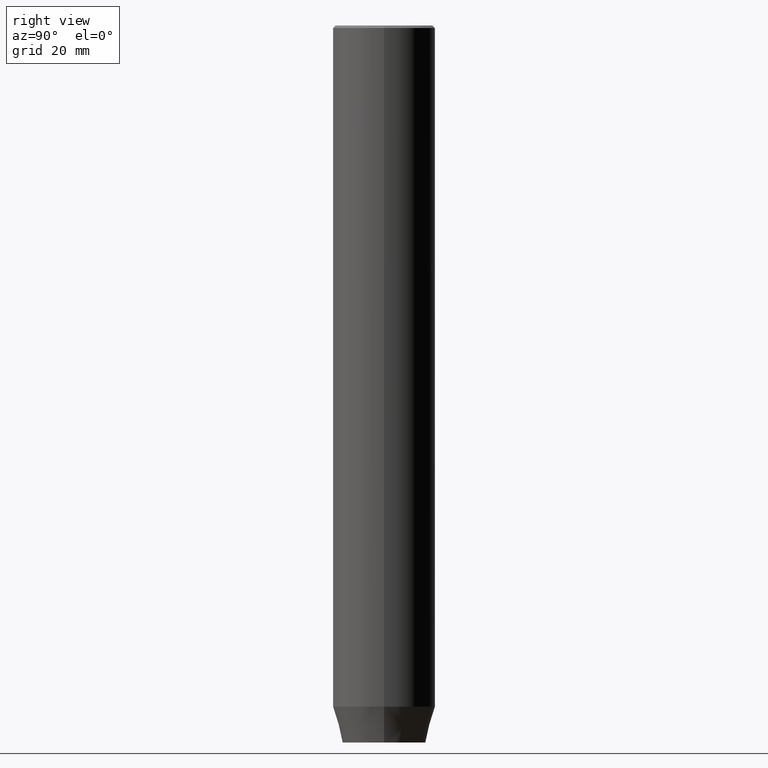
[diagram: clean part render]
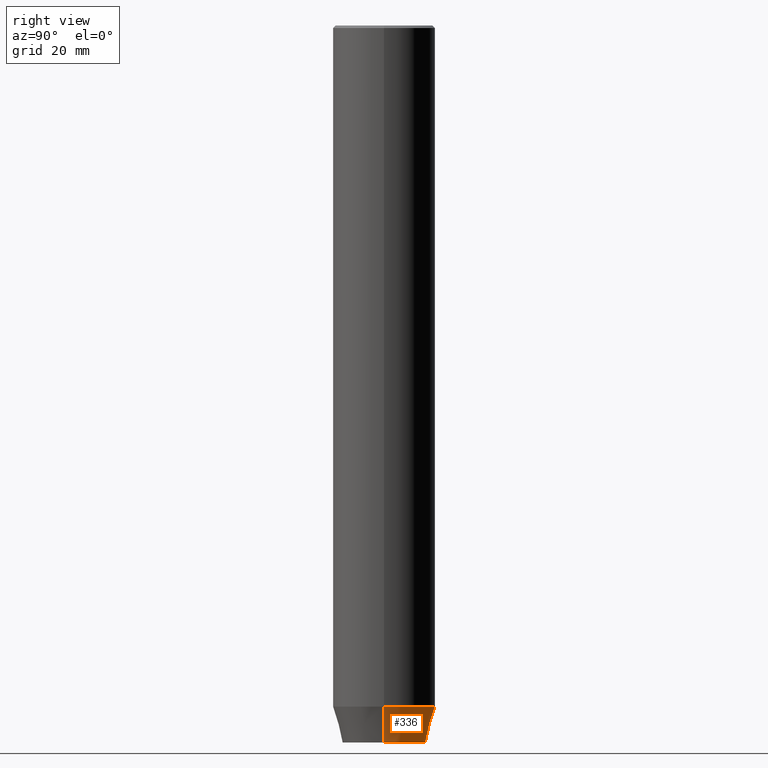
[diagram: same view with one face highlighted and labeled with its STEP entity id]
A machine part, right view. The second image highlights one B-rep face of the part: STEP entity #336.
In plain terms, the highlighted conical surface has half-angle 15 deg.
Its self-contained STEP definition (entity closure, byte-faithful):
#1 = LINE ( 'NONE', #5, #105 ) ;
#5 = CARTESIAN_POINT ( 'NONE',  ( -10.00000000000000000, 1.224646799147353256E-15, -133.0000000000000000 ) ) ;
#14 = VERTEX_POINT ( 'NONE', #313 ) ;
#22 = EDGE_CURVE ( 'NONE', #14, #497, #404, .T. ) ;
#36 = DIRECTION ( 'NONE',  ( 1.000000000000000000, 0.000000000000000000, 0.000000000000000000 ) ) ;
#37 = CARTESIAN_POINT ( 'NONE',  ( 10.00000000000000000, 0.000000000000000000, -133.0000000000000000 ) ) ;
#72 = DIRECTION ( 'NONE',  ( 1.000000000000000000, 0.000000000000000000, 0.000000000000000000 ) ) ;
#105 = VECTOR ( 'NONE', #150, 1000.000000000000114 ) ;
#123 = DIRECTION ( 'NONE',  ( -0.000000000000000000, -0.000000000000000000, 1.000000000000000000 ) ) ;
#128 = CIRCLE ( 'NONE', #291, 10.00000000000000000 ) ;
#131 = CARTESIAN_POINT ( 'NONE',  ( 0.000000000000000000, 0.000000000000000000, -140.0000000000000000 ) ) ;
#144 = ORIENTED_EDGE ( 'NONE', *, *, #159, .T. ) ;
#148 = DIRECTION ( 'NONE',  ( 1.000000000000000000, 0.000000000000000000, 0.000000000000000000 ) ) ;
#149 = CIRCLE ( 'NONE', #508, 8.124355652982137244 ) ;
#150 = DIRECTION ( 'NONE',  ( -0.2588190451025210725, 3.169619151431769255E-17, 0.9659258262890680902 ) ) ;
#159 = EDGE_CURVE ( 'NONE', #578, #243, #1, .T. ) ;
#211 = CARTESIAN_POINT ( 'NONE',  ( 0.000000000000000000, 0.000000000000000000, -133.0000000000000000 ) ) ;
#243 = VERTEX_POINT ( 'NONE', #273 ) ;
#273 = CARTESIAN_POINT ( 'NONE',  ( -10.00000000000000000, 1.224646799147353256E-15, -133.0000000000000000 ) ) ;
#277 = CONICAL_SURFACE ( 'NONE', #403, 10.00000000000000000, 0.2617993877991497964 ) ;
#280 = CARTESIAN_POINT ( 'NONE',  ( 0.000000000000000000, 0.000000000000000000, -133.0000000000000000 ) ) ;
#291 = AXIS2_PLACEMENT_3D ( 'NONE', #280, #394, #148 ) ;
#302 = ORIENTED_EDGE ( 'NONE', *, *, #22, .F. ) ;
#313 = CARTESIAN_POINT ( 'NONE',  ( 8.124355652982137244, 0.000000000000000000, -140.0000000000000000 ) ) ;
#336 = ADVANCED_FACE ( 'NONE', ( #495 ), #277, .T. ) ;
#358 = VECTOR ( 'NONE', #364, 1000.000000000000114 ) ;
#364 = DIRECTION ( 'NONE',  ( 0.2588190451025210725, 0.000000000000000000, 0.9659258262890680902 ) ) ;
#394 = DIRECTION ( 'NONE',  ( -0.000000000000000000, -0.000000000000000000, 1.000000000000000000 ) ) ;
#395 = ORIENTED_EDGE ( 'NONE', *, *, #587, .F. ) ;
#403 = AXIS2_PLACEMENT_3D ( 'NONE', #211, #123, #72 ) ;
#404 = LINE ( 'NONE', #37, #358 ) ;
#411 = ORIENTED_EDGE ( 'NONE', *, *, #452, .T. ) ;
#449 = DIRECTION ( 'NONE',  ( -0.000000000000000000, -0.000000000000000000, 1.000000000000000000 ) ) ;
#452 = EDGE_CURVE ( 'NONE', #14, #578, #149, .T. ) ;
#467 = EDGE_LOOP ( 'NONE', ( #411, #144, #395, #302 ) ) ;
#495 = FACE_OUTER_BOUND ( 'NONE', #467, .T. ) ;
#497 = VERTEX_POINT ( 'NONE', #584 ) ;
#508 = AXIS2_PLACEMENT_3D ( 'NONE', #131, #449, #36 ) ;
#542 = CARTESIAN_POINT ( 'NONE',  ( -8.124355652982137244, 1.109796706851640556E-15, -140.0000000000000000 ) ) ;
#578 = VERTEX_POINT ( 'NONE', #542 ) ;
#584 = CARTESIAN_POINT ( 'NONE',  ( 10.00000000000000000, 0.000000000000000000, -133.0000000000000000 ) ) ;
#587 = EDGE_CURVE ( 'NONE', #497, #243, #128, .T. ) ;